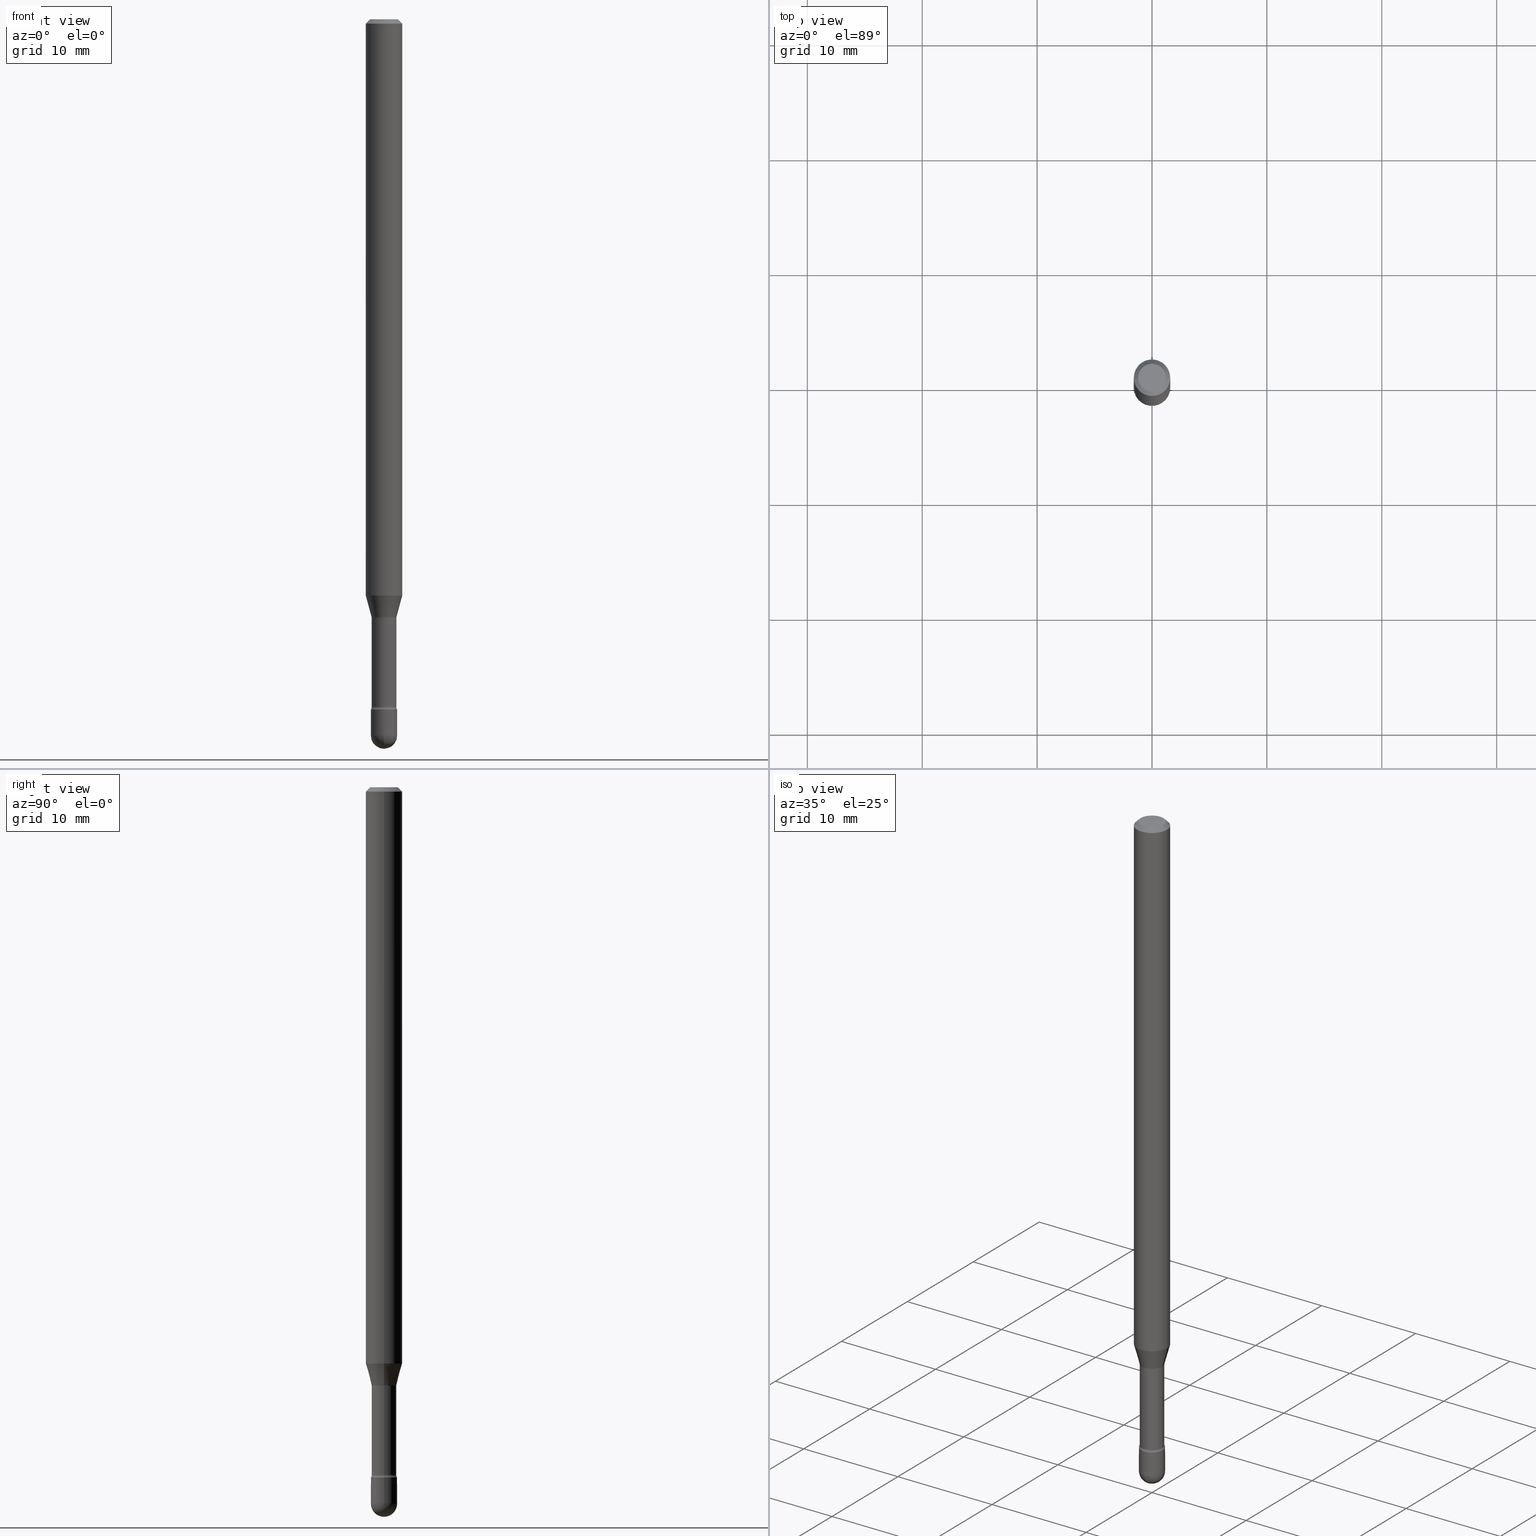
[diagram: canonical four-view strip — front | top / right | iso, engineering-drawing reading convention]
A machine part, canonical four-view strip (front | top / right | iso — engineering-drawing reading convention). The complete STEP part file that produces these views, byte-faithful:
ISO-10303-21;
HEADER;
FILE_DESCRIPTION (( 'STEP AP203' ),
    '1' );
FILE_NAME ('09551.STEP',
    '2024-04-10T00:37:04',
    ( '' ),
    ( '' ),
    'SwSTEP 2.0',
    'SolidWorks 2023',
    '' );
FILE_SCHEMA (( 'CONFIG_CONTROL_DESIGN' ));
ENDSEC;

DATA;
#1 = APPROVAL_DATE_TIME ( #189, #230 ) ;
#2 = EDGE_CURVE ( 'NONE', #69, #270, #430, .T. ) ;
#3 = ORIENTED_EDGE ( 'NONE', *, *, #423, .F. ) ;
#4 = EDGE_LOOP ( 'NONE', ( #191, #324, #109, #35 ) ) ;
#5 = COORDINATED_UNIVERSAL_TIME_OFFSET ( 5, 0, .BEHIND. ) ;
#6 = CARTESIAN_POINT ( 'NONE',  ( 3.668203209277725232E-31, -5.237222008264747365E-17, -0.01500000000000008271 ) ) ;
#7 = AXIS2_PLACEMENT_3D ( 'NONE', #349, #203, #301 ) ;
#8 = ORIENTED_EDGE ( 'NONE', *, *, #392, .F. ) ;
#9 = AXIS2_PLACEMENT_3D ( 'NONE', #254, #418, #295 ) ;
#10 = FACE_OUTER_BOUND ( 'NONE', #92, .T. ) ;
#11 = PERSON_AND_ORGANIZATION ( #208, #179 ) ;
#12 = CARTESIAN_POINT ( 'NONE',  ( 5.008546325302452990E-29, -7.150876750214836548E-15, -2.048092501787273534 ) ) ;
#13 = ORIENTED_EDGE ( 'NONE', *, *, #468, .T. ) ;
#14 = CALENDAR_DATE ( 2024, 9, 4 ) ;
#15 = CARTESIAN_POINT ( 'NONE',  ( 0.04229999999999999732, -8.522756739348924956E-15, -2.356414547187247521 ) ) ;
#16 = ORIENTED_EDGE ( 'NONE', *, *, #552, .F. ) ;
#17 = APPLICATION_PROTOCOL_DEFINITION ( 'international standard', 'config_control_design', 1994, #151 ) ;
#18 = LINE ( 'NONE', #499, #522 ) ;
#19 = ORIENTED_EDGE ( 'NONE', *, *, #552, .T. ) ;
#20 = CIRCLE ( 'NONE', #205, 0.06250000000000000000 ) ;
#21 = DIRECTION ( 'NONE',  ( -0.2588190451025220162, 5.211531920934554197E-15, 0.9659258262890678681 ) ) ;
#22 = ADVANCED_FACE ( 'NONE', ( #174 ), #134, .T. ) ;
#23 = DIRECTION ( 'NONE',  ( 1.000000000000000000, -6.982962677686246989E-15, 0.000000000000000000 ) ) ;
#24 = CARTESIAN_POINT ( 'NONE',  ( 0.06250000000000000000, -4.811533449433681963E-16, -0.01500000000000008271 ) ) ;
#25 = CC_DESIGN_DATE_AND_TIME_ASSIGNMENT ( #311, #240, ( #340 ) ) ;
#26 = AXIS2_PLACEMENT_3D ( 'NONE', #474, #76, #34 ) ;
#27 = AXIS2_PLACEMENT_3D ( 'NONE', #296, #338, #32 ) ;
#28 = DIRECTION ( 'NONE',  ( 1.000000000000000000, -6.982962677686262766E-15, 0.000000000000000000 ) ) ;
#29 = ADVANCED_FACE ( 'NONE', ( #535 ), #371, .F. ) ;
#30 = CARTESIAN_POINT ( 'NONE',  ( 0.04499999999999999833, -8.728703347107863365E-15, -2.455000000000000071 ) ) ;
#31 = LINE ( 'NONE', #24, #297 ) ;
#32 = DIRECTION ( 'NONE',  ( 1.000000000000000000, -6.982962677686266711E-15, 0.000000000000000000 ) ) ;
#33 = MANIFOLD_SOLID_BREP ( 'Body-Move/Copy2[2]', #119 ) ;
#34 = DIRECTION ( 'NONE',  ( 1.000000000000000000, -6.982962677686265922E-15, 4.876176775795935793E-29 ) ) ;
#35 = ORIENTED_EDGE ( 'NONE', *, *, #310, .F. ) ;
#36 = SPHERICAL_SURFACE ( 'NONE', #431, 0.04499999999999996364 ) ;
#37 = CIRCLE ( 'NONE', #553, 0.06250000000000000000 ) ;
#38 = DIRECTION ( 'NONE',  ( -2.445468806185136597E-29, 3.491481338843145583E-15, 1.000000000000000000 ) ) ;
#39 = AXIS2_PLACEMENT_3D ( 'NONE', #485, #521, #348 ) ;
#40 = DIRECTION ( 'NONE',  ( 1.000000000000000000, -6.982962677686266711E-15, 0.000000000000000000 ) ) ;
#41 = DIRECTION ( 'NONE',  ( 1.000000000000000000, -6.982962677686267499E-15, 0.000000000000000000 ) ) ;
#42 = CARTESIAN_POINT ( 'NONE',  ( 5.783533726627847872E-29, -8.257353366364040046E-15, -2.365000000000000213 ) ) ;
#43 = ORIENTED_EDGE ( 'NONE', *, *, #152, .T. ) ;
#44 = DIRECTION ( 'NONE',  ( 1.000000000000000000, -6.982962677686263555E-15, 4.883557194083111780E-29 ) ) ;
#45 = AXIS2_PLACEMENT_3D ( 'NONE', #183, #249, #382 ) ;
#46 = APPROVAL_STATUS ( 'not_yet_approved' ) ;
#47 = ORIENTED_EDGE ( 'NONE', *, *, #182, .F. ) ;
#48 = ORIENTED_EDGE ( 'NONE', *, *, #471, .F. ) ;
#49 = DIRECTION ( 'NONE',  ( -2.445468806185136597E-29, 3.491481338843145583E-15, 1.000000000000000000 ) ) ;
#50 = FACE_OUTER_BOUND ( 'NONE', #4, .T. ) ;
#51 = DIRECTION ( 'NONE',  ( 1.000000000000000000, -6.982962677686266711E-15, 4.876176775795935793E-29 ) ) ;
#52 = EDGE_LOOP ( 'NONE', ( #350, #444, #545, #410, #450 ) ) ;
#53 = EDGE_CURVE ( 'NONE', #358, #487, #225, .T. ) ;
#54 = LINE ( 'NONE', #227, #489 ) ;
#55 =( NAMED_UNIT ( * ) PLANE_ANGLE_UNIT ( ) SI_UNIT ( $, .RADIAN. ) );
#56 = CIRCLE ( 'NONE', #168, 0.04499999999999996364 ) ;
#57 = EDGE_LOOP ( 'NONE', ( #516, #394, #256, #186 ) ) ;
#58 = VERTEX_POINT ( 'NONE', #278 ) ;
#59 = AXIS2_PLACEMENT_3D ( 'NONE', #366, #416, #543 ) ;
#60 = APPROVAL_PERSON_ORGANIZATION ( #363, #230, #408 ) ;
#61 = CALENDAR_DATE ( 2024, 9, 4 ) ;
#62 = DIRECTION ( 'NONE',  ( -2.445468806185136597E-29, 3.491481338843145583E-15, 1.000000000000000000 ) ) ;
#63 = VERTEX_POINT ( 'NONE', #565 ) ;
#64 = ORIENTED_EDGE ( 'NONE', *, *, #423, .T. ) ;
#65 = DIRECTION ( 'NONE',  ( 1.000000000000000000, -6.982962677686265922E-15, 4.883557194083112340E-29 ) ) ;
#66 = PERSON_AND_ORGANIZATION_ROLE ( 'creator' ) ;
#67 = DIRECTION ( 'NONE',  ( -2.445468806185136597E-29, 3.491481338843145583E-15, 1.000000000000000000 ) ) ;
#68 = ORIENTED_EDGE ( 'NONE', *, *, #345, .F. ) ;
#69 = VERTEX_POINT ( 'NONE', #429 ) ;
#70 = DIRECTION ( 'NONE',  ( -6.982962677686266711E-15, -1.000000000000000000, 3.491481338843145583E-15 ) ) ;
#71 = CIRCLE ( 'NONE', #514, 0.04499999999999999833 ) ;
#72 = TOROIDAL_SURFACE ( 'NONE', #169, 0.05730000000000000371, 0.01500000000000003240 ) ;
#73 = EDGE_CURVE ( 'NONE', #187, #171, #56, .T. ) ;
#74 = DIRECTION ( 'NONE',  ( -2.445468806185136877E-29, 3.491481338843145188E-15, 1.000000000000000000 ) ) ;
#75 = DIRECTION ( 'NONE',  ( -2.445468806185136597E-29, 3.491481338843145583E-15, 1.000000000000000000 ) ) ;
#76 = DIRECTION ( 'NONE',  ( -2.438088387897960049E-29, 3.491481338843145188E-15, 1.000000000000000000 ) ) ;
#77 = CARTESIAN_POINT ( 'NONE',  ( 5.783533726627847872E-29, -8.257353366364040046E-15, -2.365000000000000213 ) ) ;
#78 = ADVANCED_FACE ( 'NONE', ( #117 ), #79, .F. ) ;
#79 = PLANE ( 'NONE',  #26 ) ;
#80 = ORIENTED_EDGE ( 'NONE', *, *, #212, .T. ) ;
#81 = UNCERTAINTY_MEASURE_WITH_UNIT (LENGTH_MEASURE( 1.000000000000000082E-05 ), #426, 'distance_accuracy_value', 'NONE');
#82 = AXIS2_PLACEMENT_3D ( 'NONE', #465, #283, #534 ) ;
#83 = DIRECTION ( 'NONE',  ( 1.000000000000000000, -6.982962677686267499E-15, 4.884662768193073002E-29 ) ) ;
#84 = EDGE_LOOP ( 'NONE', ( #87, #234, #235, #372 ) ) ;
#85 = CARTESIAN_POINT ( 'NONE',  ( -0.06250000000000000000, 3.840629472727441958E-16, -0.01500000000000008271 ) ) ;
#86 = DIRECTION ( 'NONE',  ( -2.445468806185136877E-29, 3.491481338843145188E-15, 1.000000000000000000 ) ) ;
#87 = ORIENTED_EDGE ( 'NONE', *, *, #260, .F. ) ;
#88 = CARTESIAN_POINT ( 'NONE',  ( 0.04281111260566396876, -7.449825151730412832E-15, -2.048092501787273534 ) ) ;
#89 = EDGE_CURVE ( 'NONE', #487, #63, #246, .T. ) ;
#90 = DIRECTION ( 'NONE',  ( 1.000000000000000000, -6.982962677686269077E-15, 0.000000000000000000 ) ) ;
#91 = CIRCLE ( 'NONE', #282, 0.04499999999999999833 ) ;
#92 = EDGE_LOOP ( 'NONE', ( #64, #279, #539, #540 ) ) ;
#93 = LOCAL_TIME ( 20, 37, 4.000000000000000000, #184 ) ;
#94 = CYLINDRICAL_SURFACE ( 'NONE', #216, 0.04229999999999999732 ) ;
#95 = ORIENTED_EDGE ( 'NONE', *, *, #73, .F. ) ;
#96 = ORIENTED_EDGE ( 'NONE', *, *, #152, .F. ) ;
#97 = DIRECTION ( 'NONE',  ( -2.445468806185136597E-29, 3.491481338843145583E-15, 1.000000000000000000 ) ) ;
#98 = DIRECTION ( 'NONE',  ( 1.000000000000000000, -6.982962677686269077E-15, 0.000000000000000000 ) ) ;
#99 = APPROVAL_DATE_TIME ( #176, #252 ) ;
#100 = EDGE_LOOP ( 'NONE', ( #406, #3, #395, #275 ) ) ;
#101 = ORIENTED_EDGE ( 'NONE', *, *, #341, .F. ) ;
#102 = PERSON_AND_ORGANIZATION_ROLE ( 'design_owner' ) ;
#103 = AXIS2_PLACEMENT_3D ( 'NONE', #355, #97, #107 ) ;
#104 = CARTESIAN_POINT ( 'NONE',  ( 3.316907271900976096E-16, 0.04749999999999999362, 3.181781981480094004E-17 ) ) ;
#105 = VERTEX_POINT ( 'NONE', #30 ) ;
#106 = CIRCLE ( 'NONE', #133, 0.01500000000000003587 ) ;
#107 = DIRECTION ( 'NONE',  ( 1.000000000000000000, -6.982962677686246989E-15, 0.000000000000000000 ) ) ;
#108 = DIRECTION ( 'NONE',  ( 0.000000000000000000, 0.000000000000000000, 1.000000000000000000 ) ) ;
#109 = ORIENTED_EDGE ( 'NONE', *, *, #542, .F. ) ;
#110 = EDGE_LOOP ( 'NONE', ( #441, #507, #309, #493 ) ) ;
#111 = PRODUCT_DEFINITION_SHAPE ( 'NONE', 'NONE',  #340 ) ;
#112 = CIRCLE ( 'NONE', #364, 0.04499999999999999833 ) ;
#113 = CC_DESIGN_SECURITY_CLASSIFICATION ( #284, ( #417 ) ) ;
#114 = PLANE ( 'NONE',  #387 ) ;
#115 = FACE_OUTER_BOUND ( 'NONE', #190, .T. ) ;
#116 = CARTESIAN_POINT ( 'NONE',  ( 0.06250000000000000000, -4.364351673553899931E-16, 4.780733988912490708E-16 ) ) ;
#117 = FACE_OUTER_BOUND ( 'NONE', #320, .T. ) ;
#118 = ADVANCED_FACE ( 'NONE', ( #299 ), #261, .F. ) ;
#119 = CLOSED_SHELL ( 'NONE', ( #118, #265, #302, #440, #122, #342, #132, #373, #167, #29, #78, #396, #436, #272 ) ) ;
#120 = VECTOR ( 'NONE', #21, 39.37007874015748854 ) ;
#121 = DIRECTION ( 'NONE',  ( 1.000000000000000000, -6.982962677686269077E-15, 0.000000000000000000 ) ) ;
#122 = ADVANCED_FACE ( 'NONE', ( #346 ), #480, .T. ) ;
#123 = DIRECTION ( 'NONE',  ( -1.000000000000000000, 6.982962677686265922E-15, -4.883557194083112340E-29 ) ) ;
#124 = CC_DESIGN_PERSON_AND_ORGANIZATION_ASSIGNMENT ( #150, #66, ( #340 ) ) ;
#125 = DIRECTION ( 'NONE',  ( -1.000000000000000000, 7.105427357600985293E-15, 0.000000000000000000 ) ) ;
#126 = AXIS2_PLACEMENT_3D ( 'NONE', #188, #65, #466 ) ;
#127 = VECTOR ( 'NONE', #86, 39.37007874015748143 ) ;
#128 = DIRECTION ( 'NONE',  ( 7.105427357601001859E-15, 1.000000000000000000, -3.491481338843145583E-15 ) ) ;
#129 = EDGE_CURVE ( 'NONE', #445, #500, #451, .T. ) ;
#130 = DIRECTION ( 'NONE',  ( -2.445468806185136597E-29, 3.491481338843145583E-15, 1.000000000000000000 ) ) ;
#131 = APPROVAL_STATUS ( 'not_yet_approved' ) ;
#132 = ADVANCED_FACE ( 'NONE', ( #519 ), #352, .T. ) ;
#133 = AXIS2_PLACEMENT_3D ( 'NONE', #390, #538, #332 ) ;
#134 = CYLINDRICAL_SURFACE ( 'NONE', #281, 0.04499999999999999833 ) ;
#135 = VERTEX_POINT ( 'NONE', #562 ) ;
#136 = FACE_OUTER_BOUND ( 'NONE', #377, .T. ) ;
#137 = CYLINDRICAL_SURFACE ( 'NONE', #198, 0.06250000000000000000 ) ;
#138 = VERTEX_POINT ( 'NONE', #140 ) ;
#139 = ORIENTED_EDGE ( 'NONE', *, *, #419, .T. ) ;
#140 = CARTESIAN_POINT ( 'NONE',  ( 0.06250000000000000000, -4.888073874380391431E-16, -0.01500000000000008271 ) ) ;
#141 = EDGE_CURVE ( 'NONE', #171, #105, #229, .T. ) ;
#142 = PERSON_AND_ORGANIZATION ( #208, #179 ) ;
#143 = DIRECTION ( 'NONE',  ( 1.000000000000000000, -6.982962677686262766E-15, 0.000000000000000000 ) ) ;
#144 = EDGE_LOOP ( 'NONE', ( #536, #285 ) ) ;
#145 = ORIENTED_EDGE ( 'NONE', *, *, #327, .T. ) ;
#146 = AXIS2_PLACEMENT_3D ( 'NONE', #425, #160, #121 ) ;
#147 = CARTESIAN_POINT ( 'NONE',  ( 0.000000000000000000, 0.000000000000000000, 0.000000000000000000 ) ) ;
#148 = VERTEX_POINT ( 'NONE', #498 ) ;
#149 = CIRCLE ( 'NONE', #27, 0.04229999999999999732 ) ;
#150 = PERSON_AND_ORGANIZATION ( #208, #179 ) ;
#151 = APPLICATION_CONTEXT ( 'configuration controlled 3d designs of mechanical parts and assemblies' ) ;
#152 = EDGE_CURVE ( 'NONE', #175, #433, #266, .T. ) ;
#153 = DIRECTION ( 'NONE',  ( 1.000000000000000000, -6.982962677686265133E-15, 4.883557194083112340E-29 ) ) ;
#154 = FACE_OUTER_BOUND ( 'NONE', #303, .T. ) ;
#155 = CARTESIAN_POINT ( 'NONE',  ( -0.06250000000000000000, -3.029258376428049791E-15, -0.01500000000000008271 ) ) ;
#156 = AXIS2_PLACEMENT_3D ( 'NONE', #479, #38, #83 ) ;
#157 = TOROIDAL_SURFACE ( 'NONE', #262, 0.05730000000000001065, 0.01500000000000001506 ) ;
#158 = DIRECTION ( 'NONE',  ( 1.000000000000000000, -6.982962677686262766E-15, 0.000000000000000000 ) ) ;
#159 = CARTESIAN_POINT ( 'NONE',  ( -0.04499999999999999833, -8.094725795519935522E-15, -2.365000000000000213 ) ) ;
#160 = DIRECTION ( 'NONE',  ( -2.445468806185136597E-29, 3.491481338843145583E-15, 1.000000000000000000 ) ) ;
#161 =( LENGTH_UNIT ( ) NAMED_UNIT ( * ) SI_UNIT ( $, .METRE. ) );
#162 = DIRECTION ( 'NONE',  ( -2.445468806185136597E-29, 3.491481338843145583E-15, 1.000000000000000000 ) ) ;
#163 = ADVANCED_BREP_SHAPE_REPRESENTATION ( '09551', ( #402, #33, #233 ), #523 ) ;
#164 = ORIENTED_EDGE ( 'NONE', *, *, #351, .F. ) ;
#165 = DIRECTION ( 'NONE',  ( -1.000000000000000000, 6.982962677686266711E-15, 0.000000000000000000 ) ) ;
#166 = DIRECTION ( 'NONE',  ( -2.445468806185136597E-29, 3.491481338843145583E-15, 1.000000000000000000 ) ) ;
#167 = ADVANCED_FACE ( 'NONE', ( #478 ), #473, .T. ) ;
#168 = AXIS2_PLACEMENT_3D ( 'NONE', #427, #556, #343 ) ;
#169 = AXIS2_PLACEMENT_3D ( 'NONE', #379, #290, #44 ) ;
#170 = LOCAL_TIME ( 20, 37, 4.000000000000000000, #325 ) ;
#171 = VERTEX_POINT ( 'NONE', #316 ) ;
#172 = CARTESIAN_POINT ( 'NONE',  ( -0.04229999999999999732, -7.932213488064133495E-15, -2.356414547187247521 ) ) ;
#173 = CARTESIAN_POINT ( 'NONE',  ( -0.06250000000000000000, 4.440892098500642925E-16, 4.780733988912429571E-16 ) ) ;
#174 = FACE_OUTER_BOUND ( 'NONE', #52, .T. ) ;
#175 = VERTEX_POINT ( 'NONE', #206 ) ;
#176 = DATE_AND_TIME ( #397, #307 ) ;
#177 = AXIS2_PLACEMENT_3D ( 'NONE', #104, #238, #329 ) ;
#178 = CIRCLE ( 'NONE', #306, 0.04499999999999999833 ) ;
#179 = ORGANIZATION ( 'UNSPECIFIED', 'UNSPECIFIED', '' ) ;
#180 = ORIENTED_EDGE ( 'NONE', *, *, #447, .F. ) ;
#181 = ORIENTED_EDGE ( 'NONE', *, *, #357, .T. ) ;
#182 = EDGE_CURVE ( 'NONE', #219, #388, #268, .T. ) ;
#183 = CARTESIAN_POINT ( 'NONE',  ( 0.000000000000000000, 0.000000000000000000, 0.000000000000000000 ) ) ;
#184 = COORDINATED_UNIVERSAL_TIME_OFFSET ( 5, 0, .BEHIND. ) ;
#185 = CARTESIAN_POINT ( 'NONE',  ( -0.04500000000000001221, -7.937609135271995468E-15, -2.365000000000000213 ) ) ;
#186 = ORIENTED_EDGE ( 'NONE', *, *, #495, .T. ) ;
#187 = VERTEX_POINT ( 'NONE', #525 ) ;
#188 = CARTESIAN_POINT ( 'NONE',  ( 6.003625919184510659E-29, -8.571586686859923311E-15, -2.455000000000000071 ) ) ;
#189 = DATE_AND_TIME ( #14, #503 ) ;
#190 = EDGE_LOOP ( 'NONE', ( #288, #531, #48, #463 ) ) ;
#191 = ORIENTED_EDGE ( 'NONE', *, *, #251, .F. ) ;
#192 = CC_DESIGN_PERSON_AND_ORGANIZATION_ASSIGNMENT ( #142, #369, ( #417 ) ) ;
#193 = CARTESIAN_POINT ( 'NONE',  ( -0.04499999999999999833, -8.094725795519937100E-15, -2.455000000000000071 ) ) ;
#194 = VECTOR ( 'NONE', #264, 39.37007874015748143 ) ;
#195 = CIRCLE ( 'NONE', #82, 0.04229999999999999732 ) ;
#196 = CYLINDRICAL_SURFACE ( 'NONE', #45, 0.04499999999999999833 ) ;
#197 = DIRECTION ( 'NONE',  ( 0.7071067811865475727, -7.319954787623256045E-15, -0.7071067811865474617 ) ) ;
#198 = AXIS2_PLACEMENT_3D ( 'NONE', #375, #505, #549 ) ;
#199 = CARTESIAN_POINT ( 'NONE',  ( 3.668203209277725232E-31, -5.237222008264747365E-17, -0.01500000000000008271 ) ) ;
#200 = CARTESIAN_POINT ( 'NONE',  ( -0.04749999999999999362, 3.578768372314208041E-16, -8.274703207154778150E-17 ) ) ;
#201 = DIRECTION ( 'NONE',  ( -2.445468806185136877E-29, 3.491481338843145188E-15, 1.000000000000000000 ) ) ;
#202 = CARTESIAN_POINT ( 'NONE',  ( 0.04749999999999999362, -4.035134999187581581E-16, -8.274703207154280181E-17 ) ) ;
#203 = DIRECTION ( 'NONE',  ( -2.445468806185136597E-29, 3.491481338843145583E-15, 1.000000000000000000 ) ) ;
#204 = AXIS2_PLACEMENT_3D ( 'NONE', #462, #130, #323 ) ;
#205 = AXIS2_PLACEMENT_3D ( 'NONE', #555, #385, #158 ) ;
#206 = CARTESIAN_POINT ( 'NONE',  ( -0.06250000000000000000, -6.450233742623514724E-15, -1.974612573687109185 ) ) ;
#207 = EDGE_CURVE ( 'NONE', #445, #433, #271, .T. ) ;
#208 = PERSON ( 'UNSPECIFIED', 'UNSPECIFIED', 'UNSPECIFIED', ('UNSPECIFIED'), ('UNSPECIFIED'), ('UNSPECIFIED') ) ;
#209 = DIRECTION ( 'NONE',  ( 1.000000000000000000, -6.982962677686246989E-15, 0.000000000000000000 ) ) ;
#210 = DIRECTION ( 'NONE',  ( 1.000000000000000000, -6.982962677686269077E-15, 0.000000000000000000 ) ) ;
#211 = ORIENTED_EDGE ( 'NONE', *, *, #495, .F. ) ;
#212 = EDGE_CURVE ( 'NONE', #105, #63, #524, .T. ) ;
#213 = DIRECTION ( 'NONE',  ( -0.7071067811865475727, 2.468850131082257455E-15, -0.7071067811865474617 ) ) ;
#214 = DIRECTION ( 'NONE',  ( -2.445468806185136597E-29, 3.491481338843145583E-15, 1.000000000000000000 ) ) ;
#215 = AXIS2_PLACEMENT_3D ( 'NONE', #199, #258, #165 ) ;
#216 = AXIS2_PLACEMENT_3D ( 'NONE', #456, #67, #241 ) ;
#217 = CARTESIAN_POINT ( 'NONE',  ( 5.762538269587286723E-29, -8.227377418082795508E-15, -2.356414547187247521 ) ) ;
#218 = ORIENTED_EDGE ( 'NONE', *, *, #2, .T. ) ;
#219 = VERTEX_POINT ( 'NONE', #442 ) ;
#220 = FACE_OUTER_BOUND ( 'NONE', #530, .T. ) ;
#221 = DIRECTION ( 'NONE',  ( 1.000000000000000000, -6.982962677686246989E-15, 0.000000000000000000 ) ) ;
#222 = APPLICATION_PROTOCOL_DEFINITION ( 'international standard', 'config_control_design', 1994, #399 ) ;
#223 = EDGE_CURVE ( 'NONE', #135, #360, #533, .T. ) ;
#224 = LINE ( 'NONE', #333, #120 ) ;
#225 = LINE ( 'NONE', #401, #335 ) ;
#226 = ORIENTED_EDGE ( 'NONE', *, *, #334, .F. ) ;
#227 = CARTESIAN_POINT ( 'NONE',  ( -0.04229999999999999732, 3.005595772265240852E-16, 4.780733988912440418E-16 ) ) ;
#228 = CARTESIAN_POINT ( 'NONE',  ( 0.000000000000000000, 0.000000000000000000, 0.000000000000000000 ) ) ;
#229 = CIRCLE ( 'NONE', #103, 0.04499999999999999833 ) ;
#230 = APPROVAL ( #46, 'UNSPECIFIED' ) ;
#231 = APPROVAL ( #459, 'UNSPECIFIED' ) ;
#232 = CIRCLE ( 'NONE', #59, 0.01500000000000003587 ) ;
#233 = AXIS2_PLACEMENT_3D ( 'NONE', #228, #108, #452 ) ;
#234 = ORIENTED_EDGE ( 'NONE', *, *, #341, .T. ) ;
#235 = ORIENTED_EDGE ( 'NONE', *, *, #550, .T. ) ;
#236 = PERSON_AND_ORGANIZATION ( #208, #179 ) ;
#237 = SPHERICAL_SURFACE ( 'NONE', #253, 0.04499999999999996364 ) ;
#238 = DIRECTION ( 'NONE',  ( 2.438088387897960049E-29, -3.491481338843145188E-15, -1.000000000000000000 ) ) ;
#239 = ADVANCED_FACE ( 'NONE', ( #154 ), #196, .T. ) ;
#240 = DATE_TIME_ROLE ( 'creation_date' ) ;
#241 = DIRECTION ( 'NONE',  ( 1.000000000000000000, -6.982962677686266711E-15, 4.875681250100781977E-29 ) ) ;
#242 = ORIENTED_EDGE ( 'NONE', *, *, #386, .F. ) ;
#243 = ORIENTED_EDGE ( 'NONE', *, *, #141, .F. ) ;
#244 = DIRECTION ( 'NONE',  ( -2.445468806185136597E-29, 3.491481338843145583E-15, 1.000000000000000000 ) ) ;
#245 = DIRECTION ( 'NONE',  ( -1.000000000000000000, 6.982962677686265922E-15, -4.883557194083112340E-29 ) ) ;
#246 = CIRCLE ( 'NONE', #146, 0.04499999999999999833 ) ;
#247 = AXIS2_PLACEMENT_3D ( 'NONE', #291, #413, #153 ) ;
#248 = CIRCLE ( 'NONE', #39, 0.06250000000000000000 ) ;
#249 = DIRECTION ( 'NONE',  ( -2.445468806185136597E-29, 3.491481338843145583E-15, 1.000000000000000000 ) ) ;
#250 = DIRECTION ( 'NONE',  ( -2.445468806185136597E-29, 3.491481338843145583E-15, 1.000000000000000000 ) ) ;
#251 = EDGE_CURVE ( 'NONE', #187, #148, #353, .T. ) ;
#252 = APPROVAL ( #131, 'UNSPECIFIED' ) ;
#253 = AXIS2_PLACEMENT_3D ( 'NONE', #409, #245, #287 ) ;
#254 = CARTESIAN_POINT ( 'NONE',  ( -1.169113584055446105E-44, 1.669184350826100908E-30, 4.780733988912460139E-16 ) ) ;
#255 = EDGE_CURVE ( 'NONE', #63, #487, #510, .T. ) ;
#256 = ORIENTED_EDGE ( 'NONE', *, *, #207, .T. ) ;
#257 = CYLINDRICAL_SURFACE ( 'NONE', #9, 0.04229999999999999732 ) ;
#258 = DIRECTION ( 'NONE',  ( 2.445468806185136597E-29, -3.491481338843145583E-15, -1.000000000000000000 ) ) ;
#259 = ORIENTED_EDGE ( 'NONE', *, *, #520, .F. ) ;
#260 = EDGE_CURVE ( 'NONE', #527, #135, #54, .T. ) ;
#261 = TOROIDAL_SURFACE ( 'NONE', #383, 0.05730000000000000371, 0.01500000000000003240 ) ;
#262 = AXIS2_PLACEMENT_3D ( 'NONE', #217, #494, #528 ) ;
#263 = CARTESIAN_POINT ( 'NONE',  ( -0.05730000000000001065, -7.820236430492258766E-15, -2.356414547187247521 ) ) ;
#264 = DIRECTION ( 'NONE',  ( -2.445468806185136877E-29, 3.491481338843145188E-15, 1.000000000000000000 ) ) ;
#265 = ADVANCED_FACE ( 'NONE', ( #10 ), #257, .T. ) ;
#266 = LINE ( 'NONE', #173, #420 ) ;
#267 = SECURITY_CLASSIFICATION_LEVEL ( 'unclassified' ) ;
#268 = CIRCLE ( 'NONE', #326, 0.04499999999999999833 ) ;
#269 = AXIS2_PLACEMENT_3D ( 'NONE', #362, #276, #560 ) ;
#270 = VERTEX_POINT ( 'NONE', #88 ) ;
#271 = LINE ( 'NONE', #85, #546 ) ;
#272 = ADVANCED_FACE ( 'NONE', ( #220 ), #72, .F. ) ;
#273 = PERSON_AND_ORGANIZATION ( #208, #179 ) ;
#274 = ORIENTED_EDGE ( 'NONE', *, *, #251, .T. ) ;
#275 = ORIENTED_EDGE ( 'NONE', *, *, #182, .T. ) ;
#276 = DIRECTION ( 'NONE',  ( -2.445468806185136597E-29, 3.491481338843145583E-15, 1.000000000000000000 ) ) ;
#277 = DIRECTION ( 'NONE',  ( 0.2588190451025220162, 1.565188264969616248E-15, 0.9659258262890678681 ) ) ;
#278 = CARTESIAN_POINT ( 'NONE',  ( 0.06250000000000000000, -7.330758119828969798E-15, -1.974612573687109185 ) ) ;
#279 = ORIENTED_EDGE ( 'NONE', *, *, #260, .T. ) ;
#280 = PERSON_AND_ORGANIZATION ( #208, #179 ) ;
#281 = AXIS2_PLACEMENT_3D ( 'NONE', #147, #314, #51 ) ;
#282 = AXIS2_PLACEMENT_3D ( 'NONE', #488, #484, #221 ) ;
#283 = DIRECTION ( 'NONE',  ( -2.445468806185136597E-29, 3.491481338843145583E-15, 1.000000000000000000 ) ) ;
#284 = SECURITY_CLASSIFICATION ( '', '', #267 ) ;
#285 = ORIENTED_EDGE ( 'NONE', *, *, #334, .T. ) ;
#286 = ORIENTED_EDGE ( 'NONE', *, *, #486, .F. ) ;
#287 = DIRECTION ( 'NONE',  ( 6.982962677686265922E-15, 1.000000000000000000, -6.070773319253922996E-15 ) ) ;
#288 = ORIENTED_EDGE ( 'NONE', *, *, #380, .T. ) ;
#289 = ORIENTED_EDGE ( 'NONE', *, *, #141, .T. ) ;
#290 = DIRECTION ( 'NONE',  ( -2.445468806185136597E-29, 3.491481338843145583E-15, 1.000000000000000000 ) ) ;
#291 = CARTESIAN_POINT ( 'NONE',  ( 5.762538269587286723E-29, -8.227377418082795508E-15, -2.356414547187247521 ) ) ;
#292 = AXIS2_PLACEMENT_3D ( 'NONE', #541, #244, #98 ) ;
#293 = DIRECTION ( 'NONE',  ( -2.438088387897960049E-29, 3.491481338843145188E-15, 1.000000000000000000 ) ) ;
#294 = DIRECTION ( 'NONE',  ( -2.445468806185136597E-29, 3.491481338843145583E-15, 1.000000000000000000 ) ) ;
#295 = DIRECTION ( 'NONE',  ( 1.000000000000000000, -6.982962677686266711E-15, 4.875681250100781977E-29 ) ) ;
#296 = CARTESIAN_POINT ( 'NONE',  ( 5.762538269587286723E-29, -8.227377418082795508E-15, -2.356414547187247521 ) ) ;
#297 = VECTOR ( 'NONE', #197, 39.37007874015748143 ) ;
#298 = CC_DESIGN_APPROVAL ( #231, ( #340 ) ) ;
#299 = FACE_OUTER_BOUND ( 'NONE', #110, .T. ) ;
#300 = DIRECTION ( 'NONE',  ( -2.445468806185136597E-29, 3.491481338843145583E-15, 1.000000000000000000 ) ) ;
#301 = DIRECTION ( 'NONE',  ( 1.000000000000000000, -6.982962677686266711E-15, 4.852736867747366207E-29 ) ) ;
#302 = ADVANCED_FACE ( 'NONE', ( #136 ), #157, .F. ) ;
#303 = EDGE_LOOP ( 'NONE', ( #407, #315, #289, #80, #414 ) ) ;
#304 = CARTESIAN_POINT ( 'NONE',  ( 6.003625919184510659E-29, -8.571586686859923311E-15, -2.455000000000000071 ) ) ;
#305 = CLOSED_SHELL ( 'NONE', ( #22, #428, #464, #532, #239 ) ) ;
#306 = AXIS2_PLACEMENT_3D ( 'NONE', #304, #166, #209 ) ;
#307 = LOCAL_TIME ( 20, 37, 4.000000000000000000, #491 ) ;
#308 = LENGTH_MEASURE_WITH_UNIT ( LENGTH_MEASURE( 0.02539999999999999897 ), #161 );
#309 = ORIENTED_EDGE ( 'NONE', *, *, #223, .T. ) ;
#310 = EDGE_CURVE ( 'NONE', #148, #358, #91, .T. ) ;
#311 = DATE_AND_TIME ( #61, #93 ) ;
#312 = CONICAL_SURFACE ( 'NONE', #415, 0.04281111260566396876, 0.2617993877991507956 ) ;
#313 = AXIS2_PLACEMENT_3D ( 'NONE', #434, #49, #41 ) ;
#314 = DIRECTION ( 'NONE',  ( -2.445468806185136597E-29, 3.491481338843145583E-15, 1.000000000000000000 ) ) ;
#315 = ORIENTED_EDGE ( 'NONE', *, *, #542, .T. ) ;
#316 = CARTESIAN_POINT ( 'NONE',  ( -3.197442310919848226E-16, -0.04500000000000855399, -2.455000000000000071 ) ) ;
#317 = CALENDAR_DATE ( 2024, 9, 4 ) ;
#318 = DIRECTION ( 'NONE',  ( 2.445468806185136597E-29, -3.491481338843145583E-15, -1.000000000000000000 ) ) ;
#319 = ORIENTED_EDGE ( 'NONE', *, *, #557, .T. ) ;
#320 = EDGE_LOOP ( 'NONE', ( #47, #259 ) ) ;
#321 = DATE_AND_TIME ( #439, #515 ) ;
#322 = CARTESIAN_POINT ( 'NONE',  ( 0.04229999999999999039, -7.459810999472655794E-15, -2.051974787463811456 ) ) ;
#323 = DIRECTION ( 'NONE',  ( 1.000000000000000000, -6.982962677686269077E-15, 0.000000000000000000 ) ) ;
#324 = ORIENTED_EDGE ( 'NONE', *, *, #73, .T. ) ;
#325 = COORDINATED_UNIVERSAL_TIME_OFFSET ( 5, 0, .BEHIND. ) ;
#326 = AXIS2_PLACEMENT_3D ( 'NONE', #529, #490, #482 ) ;
#327 = EDGE_CURVE ( 'NONE', #360, #135, #328, .T. ) ;
#328 = CIRCLE ( 'NONE', #269, 0.04229999999999999039 ) ;
#329 = DIRECTION ( 'NONE',  ( -1.000000000000000000, 6.982962677686265922E-15, -4.876176775795935793E-29 ) ) ;
#330 = ORIENTED_EDGE ( 'NONE', *, *, #486, .T. ) ;
#331 =( NAMED_UNIT ( * ) SI_UNIT ( $, .STERADIAN. ) SOLID_ANGLE_UNIT ( ) );
#332 = DIRECTION ( 'NONE',  ( -1.000000000000000000, 7.105427357600974249E-15, 0.000000000000000000 ) ) ;
#333 = CARTESIAN_POINT ( 'NONE',  ( -0.04281111260566396876, -6.846685499497214821E-15, -2.048092501787273534 ) ) ;
#334 = EDGE_CURVE ( 'NONE', #500, #445, #391, .T. ) ;
#335 = VECTOR ( 'NONE', #496, 39.37007874015748143 ) ;
#336 = CARTESIAN_POINT ( 'NONE',  ( 6.003625919184510659E-29, -8.571586686859923311E-15, -2.455000000000000071 ) ) ;
#337 = CIRCLE ( 'NONE', #384, 0.01500000000000001159 ) ;
#338 = DIRECTION ( 'NONE',  ( -2.445468806185136597E-29, 3.491481338843145583E-15, 1.000000000000000000 ) ) ;
#339 = CC_DESIGN_DATE_AND_TIME_ASSIGNMENT ( #321, #547, ( #284 ) ) ;
#340 = PRODUCT_DEFINITION ( 'UNKNOWN', '', #417, #517 ) ;
#341 = EDGE_CURVE ( 'NONE', #527, #368, #149, .T. ) ;
#342 = ADVANCED_FACE ( 'NONE', ( #115 ), #312, .T. ) ;
#343 = DIRECTION ( 'NONE',  ( -7.105427357601001070E-15, -1.000000000000000000, 0.000000000000000000 ) ) ;
#344 = VECTOR ( 'NONE', #74, 39.37007874015748143 ) ;
#345 = EDGE_CURVE ( 'NONE', #175, #58, #481, .T. ) ;
#346 = FACE_OUTER_BOUND ( 'NONE', #376, .T. ) ;
#347 = CARTESIAN_POINT ( 'NONE',  ( 2.023552857353652888E-45, -2.889097183224559242E-31, -8.274703207154537794E-17 ) ) ;
#348 = DIRECTION ( 'NONE',  ( 1.000000000000000000, -6.982962677686266711E-15, 0.000000000000000000 ) ) ;
#349 = CARTESIAN_POINT ( 'NONE',  ( -1.169113584055446105E-44, 1.669184350826100908E-30, 4.780733988912460139E-16 ) ) ;
#350 = ORIENTED_EDGE ( 'NONE', *, *, #310, .T. ) ;
#351 = EDGE_CURVE ( 'NONE', #69, #135, #106, .T. ) ;
#352 = CONICAL_SURFACE ( 'NONE', #437, 0.04281111260566396876, 0.2617993877991507956 ) ;
#353 = CIRCLE ( 'NONE', #126, 0.04499999999999996364 ) ;
#354 = APPROVAL_PERSON_ORGANIZATION ( #11, #252, #443 ) ;
#355 = CARTESIAN_POINT ( 'NONE',  ( 6.003625919184510659E-29, -8.571586686859923311E-15, -2.455000000000000071 ) ) ;
#356 = LINE ( 'NONE', #526, #127 ) ;
#357 = EDGE_CURVE ( 'NONE', #270, #360, #232, .T. ) ;
#358 = VERTEX_POINT ( 'NONE', #193 ) ;
#359 = PERSON_AND_ORGANIZATION_ROLE ( 'classification_officer' ) ;
#360 = VERTEX_POINT ( 'NONE', #322 ) ;
#361 = ORIENTED_EDGE ( 'NONE', *, *, #207, .F. ) ;
#362 = CARTESIAN_POINT ( 'NONE',  ( 5.018040333821126293E-29, -7.164431678206526346E-15, -2.051974787463811456 ) ) ;
#363 = PERSON_AND_ORGANIZATION ( #208, #179 ) ;
#364 = AXIS2_PLACEMENT_3D ( 'NONE', #42, #566, #90 ) ;
#365 = CC_DESIGN_APPROVAL ( #252, ( #417 ) ) ;
#366 = CARTESIAN_POINT ( 'NONE',  ( 0.05730000000000000371, -7.564555439637949163E-15, -2.051974787463811456 ) ) ;
#367 = ORIENTED_EDGE ( 'NONE', *, *, #345, .T. ) ;
#368 = VERTEX_POINT ( 'NONE', #15 ) ;
#369 = PERSON_AND_ORGANIZATION_ROLE ( 'creator' ) ;
#370 = CARTESIAN_POINT ( 'NONE',  ( 0.05730000000000001065, -8.627501179514218326E-15, -2.356414547187247521 ) ) ;
#371 = PLANE ( 'NONE',  #177 ) ;
#372 = ORIENTED_EDGE ( 'NONE', *, *, #223, .F. ) ;
#373 = ADVANCED_FACE ( 'NONE', ( #461 ), #137, .T. ) ;
#374 = SHAPE_DEFINITION_REPRESENTATION ( #111, #163 ) ;
#375 = CARTESIAN_POINT ( 'NONE',  ( -1.169113584055446105E-44, 1.669184350826100908E-30, 4.780733988912460139E-16 ) ) ;
#376 = EDGE_LOOP ( 'NONE', ( #435, #43, #16, #286 ) ) ;
#377 = EDGE_LOOP ( 'NONE', ( #101, #319, #506, #8 ) ) ;
#378 = COORDINATED_UNIVERSAL_TIME_OFFSET ( 5, 0, .BEHIND. ) ;
#379 = CARTESIAN_POINT ( 'NONE',  ( 5.018040333821126293E-29, -7.164431678206526346E-15, -2.051974787463811456 ) ) ;
#380 = EDGE_CURVE ( 'NONE', #270, #69, #421, .T. ) ;
#381 = FACE_OUTER_BOUND ( 'NONE', #84, .T. ) ;
#382 = DIRECTION ( 'NONE',  ( 1.000000000000000000, -6.982962677686266711E-15, 4.876176775795935793E-29 ) ) ;
#383 = AXIS2_PLACEMENT_3D ( 'NONE', #559, #162, #561 ) ;
#384 = AXIS2_PLACEMENT_3D ( 'NONE', #370, #70, #143 ) ;
#385 = DIRECTION ( 'NONE',  ( -2.445468806185136597E-29, 3.491481338843145583E-15, 1.000000000000000000 ) ) ;
#386 = EDGE_CURVE ( 'NONE', #69, #175, #224, .T. ) ;
#387 = AXIS2_PLACEMENT_3D ( 'NONE', #77, #293, #469 ) ;
#388 = VERTEX_POINT ( 'NONE', #185 ) ;
#389 = CARTESIAN_POINT ( 'NONE',  ( 6.003625919184510659E-29, -8.571586686859923311E-15, -2.455000000000000071 ) ) ;
#390 = CARTESIAN_POINT ( 'NONE',  ( -0.05730000000000000371, -6.757290690615989603E-15, -2.051974787463811456 ) ) ;
#391 = CIRCLE ( 'NONE', #477, 0.04749999999999999362 ) ;
#392 = EDGE_CURVE ( 'NONE', #368, #219, #337, .T. ) ;
#393 = APPROVAL_DATE_TIME ( #446, #231 ) ;
#394 = ORIENTED_EDGE ( 'NONE', *, *, #129, .F. ) ;
#395 = ORIENTED_EDGE ( 'NONE', *, *, #392, .T. ) ;
#396 = ADVANCED_FACE ( 'NONE', ( #551 ), #438, .F. ) ;
#397 = CALENDAR_DATE ( 2024, 9, 4 ) ;
#398 = CC_DESIGN_PERSON_AND_ORGANIZATION_ASSIGNMENT ( #273, #102, ( #504 ) ) ;
#399 = APPLICATION_CONTEXT ( 'configuration controlled 3d designs of mechanical parts and assemblies' ) ;
#400 = FACE_OUTER_BOUND ( 'NONE', #458, .T. ) ;
#401 = CARTESIAN_POINT ( 'NONE',  ( -0.04499999999999999833, 3.197442310920450718E-16, -2.213520790614707560E-30 ) ) ;
#402 = MANIFOLD_SOLID_BREP ( 'Body-Move/Copy2[1]', #305 ) ;
#403 = DIRECTION ( 'NONE',  ( -2.445468806185136877E-29, 3.491481338843145188E-15, 1.000000000000000000 ) ) ;
#404 = MECHANICAL_CONTEXT ( 'NONE', #151, 'mechanical' ) ;
#405 = CC_DESIGN_APPROVAL ( #230, ( #284 ) ) ;
#406 = ORIENTED_EDGE ( 'NONE', *, *, #557, .F. ) ;
#407 = ORIENTED_EDGE ( 'NONE', *, *, #53, .F. ) ;
#408 = APPROVAL_ROLE ( '' ) ;
#409 = CARTESIAN_POINT ( 'NONE',  ( 6.003625919184510659E-29, -8.571586686859923311E-15, -2.455000000000000071 ) ) ;
#410 = ORIENTED_EDGE ( 'NONE', *, *, #212, .F. ) ;
#411 = EDGE_LOOP ( 'NONE', ( #242, #218, #139, #68 ) ) ;
#412 = APPROVAL_ROLE ( '' ) ;
#413 = DIRECTION ( 'NONE',  ( -2.445468806185136597E-29, 3.491481338843145583E-15, 1.000000000000000000 ) ) ;
#414 = ORIENTED_EDGE ( 'NONE', *, *, #89, .F. ) ;
#415 = AXIS2_PLACEMENT_3D ( 'NONE', #558, #294, #470 ) ;
#416 = DIRECTION ( 'NONE',  ( -6.982962677686266711E-15, -1.000000000000000000, 3.491481338843145583E-15 ) ) ;
#417 = PRODUCT_DEFINITION_FORMATION_WITH_SPECIFIED_SOURCE ( 'ANY', '', #504, .NOT_KNOWN. ) ;
#418 = DIRECTION ( 'NONE',  ( -2.445468806185136597E-29, 3.491481338843145583E-15, 1.000000000000000000 ) ) ;
#419 = EDGE_CURVE ( 'NONE', #270, #58, #18, .T. ) ;
#420 = VECTOR ( 'NONE', #201, 39.37007874015748143 ) ;
#421 = CIRCLE ( 'NONE', #453, 0.04281111260566396876 ) ;
#422 = CIRCLE ( 'NONE', #454, 0.01500000000000001159 ) ;
#423 = EDGE_CURVE ( 'NONE', #368, #527, #195, .T. ) ;
#424 = CARTESIAN_POINT ( 'NONE',  ( 3.668203209277725232E-31, -5.237222008264747365E-17, -0.01500000000000008271 ) ) ;
#425 = CARTESIAN_POINT ( 'NONE',  ( 5.783533726627847872E-29, -8.257353366364040046E-15, -2.365000000000000213 ) ) ;
#426 =( CONVERSION_BASED_UNIT ( 'INCH', #308 ) LENGTH_UNIT ( ) NAMED_UNIT ( #460 ) );
#427 = CARTESIAN_POINT ( 'NONE',  ( 6.003625919184510659E-29, -8.571586686859923311E-15, -2.455000000000000071 ) ) ;
#428 = ADVANCED_FACE ( 'NONE', ( #50 ), #237, .T. ) ;
#429 = CARTESIAN_POINT ( 'NONE',  ( -0.04281111260566396876, -6.648459621060365561E-15, -2.048092501787273534 ) ) ;
#430 = CIRCLE ( 'NONE', #204, 0.04281111260566396876 ) ;
#431 = AXIS2_PLACEMENT_3D ( 'NONE', #389, #123, #564 ) ;
#432 = DIRECTION ( 'NONE',  ( -2.445468806185136597E-29, 3.491481338843145583E-15, 1.000000000000000000 ) ) ;
#433 = VERTEX_POINT ( 'NONE', #155 ) ;
#434 = CARTESIAN_POINT ( 'NONE',  ( 5.018040333821126293E-29, -7.164431678206526346E-15, -2.051974787463811456 ) ) ;
#435 = ORIENTED_EDGE ( 'NONE', *, *, #471, .T. ) ;
#436 = ADVANCED_FACE ( 'NONE', ( #381 ), #94, .T. ) ;
#437 = AXIS2_PLACEMENT_3D ( 'NONE', #483, #432, #210 ) ;
#438 = TOROIDAL_SURFACE ( 'NONE', #247, 0.05730000000000001065, 0.01500000000000001506 ) ;
#439 = CALENDAR_DATE ( 2024, 9, 4 ) ;
#440 = ADVANCED_FACE ( 'NONE', ( #400 ), #467, .T. ) ;
#441 = ORIENTED_EDGE ( 'NONE', *, *, #2, .F. ) ;
#442 = CARTESIAN_POINT ( 'NONE',  ( 0.04500000000000001221, -8.571586686859921733E-15, -2.365000000000000213 ) ) ;
#443 = APPROVAL_ROLE ( '' ) ;
#444 = ORIENTED_EDGE ( 'NONE', *, *, #53, .T. ) ;
#445 = VERTEX_POINT ( 'NONE', #200 ) ;
#446 = DATE_AND_TIME ( #317, #170 ) ;
#447 = EDGE_CURVE ( 'NONE', #105, #148, #71, .T. ) ;
#448 = DIRECTION ( 'NONE',  ( -1.000000000000000000, 6.982962677686266711E-15, 0.000000000000000000 ) ) ;
#449 = ORIENTED_EDGE ( 'NONE', *, *, #255, .T. ) ;
#450 = ORIENTED_EDGE ( 'NONE', *, *, #447, .T. ) ;
#451 = CIRCLE ( 'NONE', #156, 0.04749999999999999362 ) ;
#452 = DIRECTION ( 'NONE',  ( 1.000000000000000000, 0.000000000000000000, 0.000000000000000000 ) ) ;
#453 = AXIS2_PLACEMENT_3D ( 'NONE', #12, #62, #509 ) ;
#454 = AXIS2_PLACEMENT_3D ( 'NONE', #263, #128, #125 ) ;
#455 = PRODUCT_RELATED_PRODUCT_CATEGORY ( 'detail', '', ( #504 ) ) ;
#456 = CARTESIAN_POINT ( 'NONE',  ( -1.169113584055446105E-44, 1.669184350826100908E-30, 4.780733988912460139E-16 ) ) ;
#457 = ORIENTED_EDGE ( 'NONE', *, *, #380, .F. ) ;
#458 = EDGE_LOOP ( 'NONE', ( #226, #13, #19, #361 ) ) ;
#459 = APPROVAL_STATUS ( 'not_yet_approved' ) ;
#460 = DIMENSIONAL_EXPONENTS ( 1.000000000000000000, 0.000000000000000000, 0.000000000000000000, 0.000000000000000000, 0.000000000000000000, 0.000000000000000000, 0.000000000000000000 ) ;
#461 = FACE_OUTER_BOUND ( 'NONE', #497, .T. ) ;
#462 = CARTESIAN_POINT ( 'NONE',  ( 5.008546325302452990E-29, -7.150876750214836548E-15, -2.048092501787273534 ) ) ;
#463 = ORIENTED_EDGE ( 'NONE', *, *, #419, .F. ) ;
#464 = ADVANCED_FACE ( 'NONE', ( #476 ), #114, .T. ) ;
#465 = CARTESIAN_POINT ( 'NONE',  ( 5.762538269587286723E-29, -8.227377418082795508E-15, -2.356414547187247521 ) ) ;
#466 = DIRECTION ( 'NONE',  ( 6.982962677686265133E-15, 1.000000000000000000, 0.000000000000000000 ) ) ;
#467 = CONICAL_SURFACE ( 'NONE', #548, 0.06250000000000000000, 0.7853981633974483900 ) ;
#468 = EDGE_CURVE ( 'NONE', #500, #138, #31, .T. ) ;
#469 = DIRECTION ( 'NONE',  ( 1.000000000000000000, -6.982962677686265922E-15, 4.876176775795935793E-29 ) ) ;
#470 = DIRECTION ( 'NONE',  ( 1.000000000000000000, -6.982962677686269077E-15, 0.000000000000000000 ) ) ;
#471 = EDGE_CURVE ( 'NONE', #58, #175, #20, .T. ) ;
#472 = CARTESIAN_POINT ( 'NONE',  ( 4.828853453252775406E-29, -6.894322952473577340E-15, -1.974612573687109185 ) ) ;
#473 = CONICAL_SURFACE ( 'NONE', #215, 0.06250000000000000000, 0.7853981633974483900 ) ;
#474 = CARTESIAN_POINT ( 'NONE',  ( 3.142333204959397663E-16, 0.04499999999999174105, -2.365000000000000213 ) ) ;
#475 = CC_DESIGN_PERSON_AND_ORGANIZATION_ASSIGNMENT ( #236, #359, ( #284 ) ) ;
#476 = FACE_OUTER_BOUND ( 'NONE', #501, .T. ) ;
#477 = AXIS2_PLACEMENT_3D ( 'NONE', #347, #300, #512 ) ;
#478 = FACE_OUTER_BOUND ( 'NONE', #57, .T. ) ;
#479 = CARTESIAN_POINT ( 'NONE',  ( 2.023552857353652888E-45, -2.889097183224559242E-31, -8.274703207154537794E-17 ) ) ;
#480 = CYLINDRICAL_SURFACE ( 'NONE', #7, 0.06250000000000000000 ) ;
#481 = CIRCLE ( 'NONE', #502, 0.06250000000000000000 ) ;
#482 = DIRECTION ( 'NONE',  ( 1.000000000000000000, -6.982962677686269077E-15, 0.000000000000000000 ) ) ;
#483 = CARTESIAN_POINT ( 'NONE',  ( 5.008546325302452990E-29, -7.150876750214836548E-15, -2.048092501787273534 ) ) ;
#484 = DIRECTION ( 'NONE',  ( -2.445468806185136597E-29, 3.491481338843145583E-15, 1.000000000000000000 ) ) ;
#485 = CARTESIAN_POINT ( 'NONE',  ( 3.668203209277725232E-31, -5.237222008264747365E-17, -0.01500000000000008271 ) ) ;
#486 = EDGE_CURVE ( 'NONE', #58, #138, #511, .T. ) ;
#487 = VERTEX_POINT ( 'NONE', #159 ) ;
#488 = CARTESIAN_POINT ( 'NONE',  ( 6.003625919184510659E-29, -8.571586686859923311E-15, -2.455000000000000071 ) ) ;
#489 = VECTOR ( 'NONE', #403, 39.37007874015748143 ) ;
#490 = DIRECTION ( 'NONE',  ( -2.445468806185136597E-29, 3.491481338843145583E-15, 1.000000000000000000 ) ) ;
#491 = COORDINATED_UNIVERSAL_TIME_OFFSET ( 5, 0, .BEHIND. ) ;
#492 = EDGE_LOOP ( 'NONE', ( #95, #274, #180, #243 ) ) ;
#493 = ORIENTED_EDGE ( 'NONE', *, *, #357, .F. ) ;
#494 = DIRECTION ( 'NONE',  ( -2.445468806185136597E-29, 3.491481338843145583E-15, 1.000000000000000000 ) ) ;
#495 = EDGE_CURVE ( 'NONE', #433, #138, #37, .T. ) ;
#496 = DIRECTION ( 'NONE',  ( -2.445468806185136877E-29, 3.491481338843145188E-15, 1.000000000000000000 ) ) ;
#497 = EDGE_LOOP ( 'NONE', ( #96, #367, #330, #211 ) ) ;
#498 = CARTESIAN_POINT ( 'NONE',  ( 3.142333204959418864E-16, 0.04499999999999140798, -2.455000000000000515 ) ) ;
#499 = CARTESIAN_POINT ( 'NONE',  ( 0.04281111260566396876, -7.449825151730412832E-15, -2.048092501787273534 ) ) ;
#500 = VERTEX_POINT ( 'NONE', #202 ) ;
#501 = EDGE_LOOP ( 'NONE', ( #449, #544 ) ) ;
#502 = AXIS2_PLACEMENT_3D ( 'NONE', #472, #75, #28 ) ;
#503 = LOCAL_TIME ( 20, 37, 4.000000000000000000, #5 ) ;
#504 = PRODUCT ( '09551', '09551', '', ( #404 ) ) ;
#505 = DIRECTION ( 'NONE',  ( -2.445468806185136597E-29, 3.491481338843145583E-15, 1.000000000000000000 ) ) ;
#506 = ORIENTED_EDGE ( 'NONE', *, *, #520, .T. ) ;
#507 = ORIENTED_EDGE ( 'NONE', *, *, #351, .T. ) ;
#508 = PERSON_AND_ORGANIZATION ( #208, #179 ) ;
#509 = DIRECTION ( 'NONE',  ( 1.000000000000000000, -6.982962677686269077E-15, 0.000000000000000000 ) ) ;
#510 = CIRCLE ( 'NONE', #292, 0.04499999999999999833 ) ;
#511 = LINE ( 'NONE', #116, #344 ) ;
#512 = DIRECTION ( 'NONE',  ( 1.000000000000000000, -6.982962677686267499E-15, 4.884662768193073002E-29 ) ) ;
#513 = CC_DESIGN_PERSON_AND_ORGANIZATION_ASSIGNMENT ( #508, #537, ( #417 ) ) ;
#514 = AXIS2_PLACEMENT_3D ( 'NONE', #336, #250, #23 ) ;
#515 = LOCAL_TIME ( 20, 37, 4.000000000000000000, #378 ) ;
#516 = ORIENTED_EDGE ( 'NONE', *, *, #468, .F. ) ;
#517 = DESIGN_CONTEXT ( 'detailed design', #399, 'design' ) ;
#518 = FACE_OUTER_BOUND ( 'NONE', #492, .T. ) ;
#519 = FACE_OUTER_BOUND ( 'NONE', #411, .T. ) ;
#520 = EDGE_CURVE ( 'NONE', #388, #219, #112, .T. ) ;
#521 = DIRECTION ( 'NONE',  ( -2.445468806185136597E-29, 3.491481338843145583E-15, 1.000000000000000000 ) ) ;
#522 = VECTOR ( 'NONE', #277, 39.37007874015748854 ) ;
#523 =( GEOMETRIC_REPRESENTATION_CONTEXT ( 3 ) GLOBAL_UNCERTAINTY_ASSIGNED_CONTEXT ( ( #81 ) ) GLOBAL_UNIT_ASSIGNED_CONTEXT ( ( #426, #55, #331 ) ) REPRESENTATION_CONTEXT ( 'NONE', 'WORKASPACE' ) );
#524 = LINE ( 'NONE', #563, #194 ) ;
#525 = CARTESIAN_POINT ( 'NONE',  ( 6.115596139613495537E-29, -8.725947891809782708E-15, -2.500000000000000000 ) ) ;
#526 = CARTESIAN_POINT ( 'NONE',  ( 0.04229999999999999732, -2.953793212661273771E-16, 4.780733988912480847E-16 ) ) ;
#527 = VERTEX_POINT ( 'NONE', #172 ) ;
#528 = DIRECTION ( 'NONE',  ( 1.000000000000000000, -6.982962677686265133E-15, 4.883557194083112340E-29 ) ) ;
#529 = CARTESIAN_POINT ( 'NONE',  ( 5.783533726627847872E-29, -8.257353366364040046E-15, -2.365000000000000213 ) ) ;
#530 = EDGE_LOOP ( 'NONE', ( #164, #457, #181, #145 ) ) ;
#531 = ORIENTED_EDGE ( 'NONE', *, *, #386, .T. ) ;
#532 = ADVANCED_FACE ( 'NONE', ( #518 ), #36, .T. ) ;
#533 = CIRCLE ( 'NONE', #313, 0.04229999999999999039 ) ;
#534 = DIRECTION ( 'NONE',  ( 1.000000000000000000, -6.982962677686266711E-15, 0.000000000000000000 ) ) ;
#535 = FACE_OUTER_BOUND ( 'NONE', #144, .T. ) ;
#536 = ORIENTED_EDGE ( 'NONE', *, *, #129, .T. ) ;
#537 = PERSON_AND_ORGANIZATION_ROLE ( 'design_supplier' ) ;
#538 = DIRECTION ( 'NONE',  ( 7.105427357601001859E-15, 1.000000000000000000, -3.491481338843145583E-15 ) ) ;
#539 = ORIENTED_EDGE ( 'NONE', *, *, #327, .F. ) ;
#540 = ORIENTED_EDGE ( 'NONE', *, *, #550, .F. ) ;
#541 = CARTESIAN_POINT ( 'NONE',  ( 5.783533726627847872E-29, -8.257353366364040046E-15, -2.365000000000000213 ) ) ;
#542 = EDGE_CURVE ( 'NONE', #358, #171, #178, .T. ) ;
#543 = DIRECTION ( 'NONE',  ( 1.000000000000000000, -6.982962677686251722E-15, 0.000000000000000000 ) ) ;
#544 = ORIENTED_EDGE ( 'NONE', *, *, #89, .T. ) ;
#545 = ORIENTED_EDGE ( 'NONE', *, *, #255, .F. ) ;
#546 = VECTOR ( 'NONE', #213, 39.37007874015748143 ) ;
#547 = DATE_TIME_ROLE ( 'classification_date' ) ;
#548 = AXIS2_PLACEMENT_3D ( 'NONE', #6, #318, #448 ) ;
#549 = DIRECTION ( 'NONE',  ( 1.000000000000000000, -6.982962677686266711E-15, 4.852736867747366207E-29 ) ) ;
#550 = EDGE_CURVE ( 'NONE', #368, #360, #356, .T. ) ;
#551 = FACE_OUTER_BOUND ( 'NONE', #100, .T. ) ;
#552 = EDGE_CURVE ( 'NONE', #138, #433, #248, .T. ) ;
#553 = AXIS2_PLACEMENT_3D ( 'NONE', #424, #214, #40 ) ;
#554 = APPROVAL_PERSON_ORGANIZATION ( #280, #231, #412 ) ;
#555 = CARTESIAN_POINT ( 'NONE',  ( 4.828853453252775406E-29, -6.894322952473577340E-15, -1.974612573687109185 ) ) ;
#556 = DIRECTION ( 'NONE',  ( -1.000000000000000000, 7.105427357601001070E-15, -4.926315508542082329E-29 ) ) ;
#557 = EDGE_CURVE ( 'NONE', #527, #388, #422, .T. ) ;
#558 = CARTESIAN_POINT ( 'NONE',  ( 5.008546325302452990E-29, -7.150876750214836548E-15, -2.048092501787273534 ) ) ;
#559 = CARTESIAN_POINT ( 'NONE',  ( 5.018040333821126293E-29, -7.164431678206526346E-15, -2.051974787463811456 ) ) ;
#560 = DIRECTION ( 'NONE',  ( 1.000000000000000000, -6.982962677686267499E-15, 0.000000000000000000 ) ) ;
#561 = DIRECTION ( 'NONE',  ( 1.000000000000000000, -6.982962677686263555E-15, 4.883557194083111780E-29 ) ) ;
#562 = CARTESIAN_POINT ( 'NONE',  ( -0.04229999999999999039, -7.395344970918138518E-15, -2.051974787463811456 ) ) ;
#563 = CARTESIAN_POINT ( 'NONE',  ( 0.04499999999999999833, -3.142333204958819823E-16, 2.194279549108170967E-30 ) ) ;
#564 = DIRECTION ( 'NONE',  ( 6.982962677686265922E-15, 1.000000000000000000, -6.070773319253922996E-15 ) ) ;
#565 = CARTESIAN_POINT ( 'NONE',  ( 0.04499999999999999833, -8.571586686859921733E-15, -2.365000000000000213 ) ) ;
#566 = DIRECTION ( 'NONE',  ( -2.445468806185136597E-29, 3.491481338843145583E-15, 1.000000000000000000 ) ) ;
ENDSEC;
END-ISO-10303-21;
